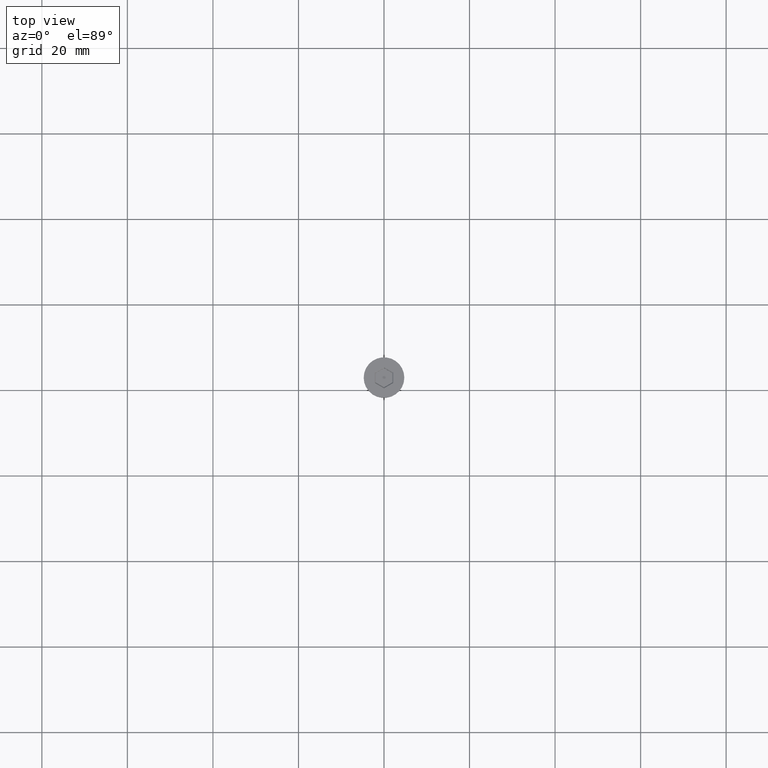
[diagram: clean part render]
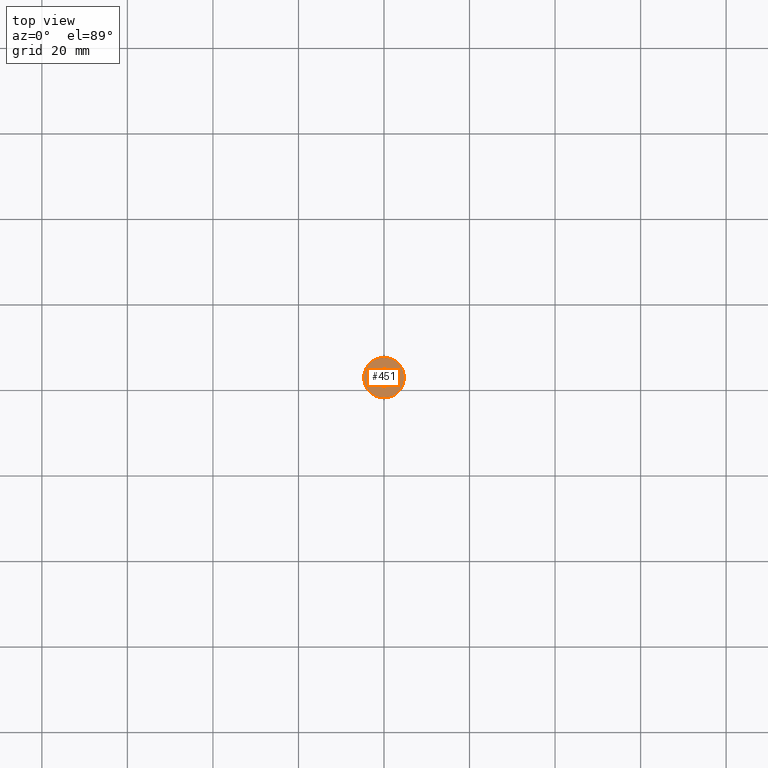
[diagram: same view with one face highlighted and labeled with its STEP entity id]
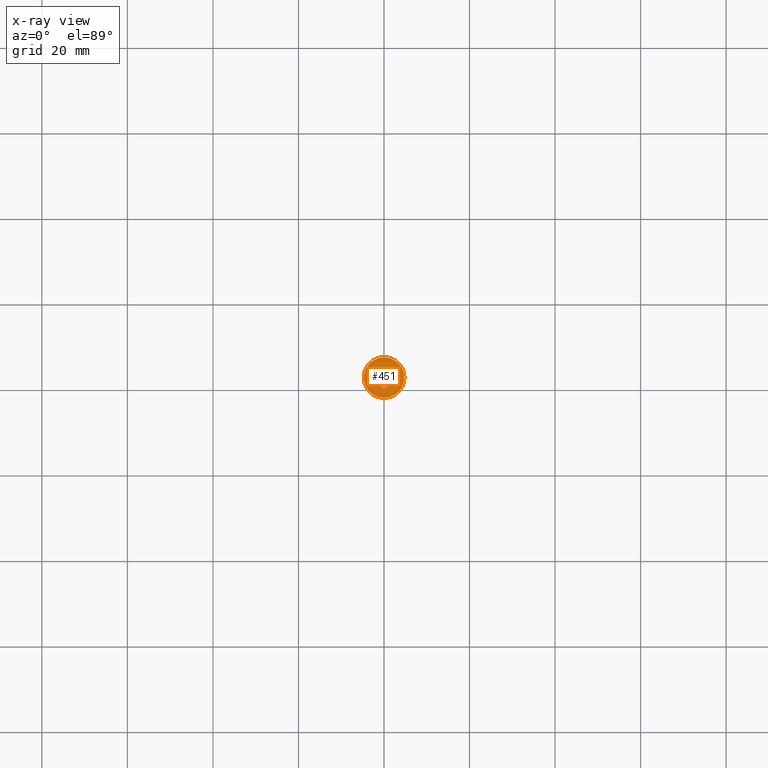
[diagram: x-ray of the same camera — body ghosted, the highlighted face saturated]
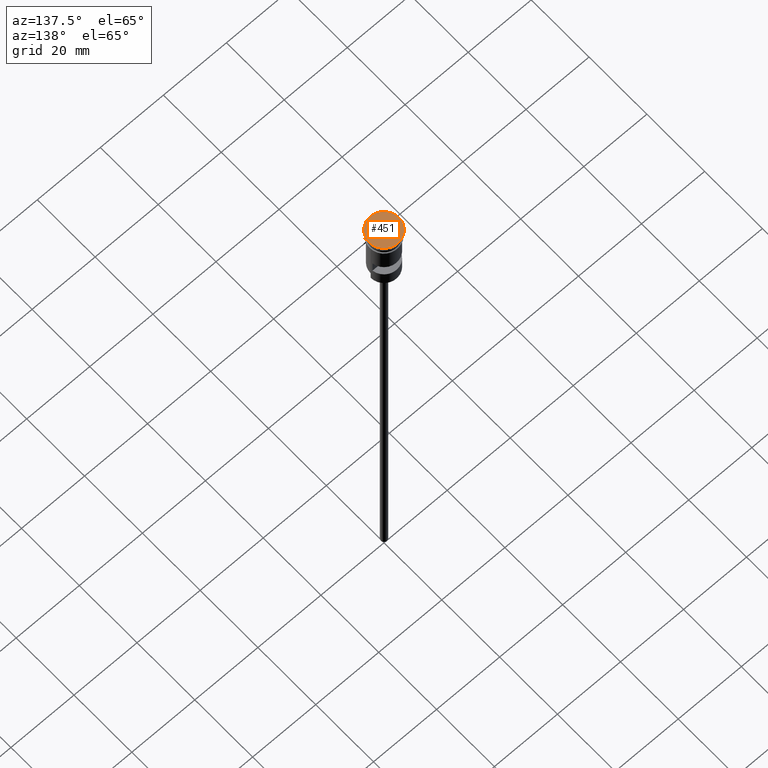
[diagram: same view with one face highlighted and labeled with its STEP entity id]
A machine part, top view. The second image highlights one B-rep face of the part: STEP entity #451.
The next image is the same camera in x-ray: the body ghosted, the highlighted face saturated — about 0% of this face is hidden behind the body in this view.
A second angle (auxiliary view) of the same face is appended — the face is thin or edge-on in the first view.
In plain terms, the highlighted planar face has unit normal (0, -0, 1).
Its self-contained STEP definition (entity closure, byte-faithful):
#25 = DIRECTION ( 'NONE',  ( 1.000000000000000000, 0.000000000000000000, 0.000000000000000000 ) ) ;
#41 = CARTESIAN_POINT ( 'NONE',  ( 2.049999999999996714, 1.299038105676652455, 0.000000000000000000 ) ) ;
#48 = CARTESIAN_POINT ( 'NONE',  ( 2.149999999999993250, 1.241303078757691969, 0.000000000000000000 ) ) ;
#69 = DIRECTION ( 'NONE',  ( -0.8660254037844387076, -0.4999999999999998335, 0.000000000000000000 ) ) ;
#82 = VERTEX_POINT ( 'NONE', #642 ) ;
#98 = CARTESIAN_POINT ( 'NONE',  ( -0.09999999999999692468, 2.424871130596422564, 0.000000000000000000 ) ) ;
#100 = DIRECTION ( 'NONE',  ( -1.926044357355332218E-16, -1.000000000000000000, 0.000000000000000000 ) ) ;
#104 = VERTEX_POINT ( 'NONE', #389 ) ;
#156 = LINE ( 'NONE', #41, #462 ) ;
#162 = DIRECTION ( 'NONE',  ( 1.000000000000000000, 0.000000000000000000, 0.000000000000000000 ) ) ;
#194 = DIRECTION ( 'NONE',  ( -0.000000000000000000, -0.000000000000000000, 1.000000000000000000 ) ) ;
#210 = ORIENTED_EDGE ( 'NONE', *, *, #1365, .T. ) ;
#216 = VECTOR ( 'NONE', #1186, 999.9999999999998863 ) ;
#297 = CARTESIAN_POINT ( 'NONE',  ( -2.149999999999994138, 1.241303078757690859, 0.000000000000000000 ) ) ;
#311 = DIRECTION ( 'NONE',  ( 1.000000000000000000, 0.000000000000000000, 0.000000000000000000 ) ) ;
#321 = CIRCLE ( 'NONE', #1233, 4.750000000000000000 ) ;
#370 = ORIENTED_EDGE ( 'NONE', *, *, #565, .T. ) ;
#389 = CARTESIAN_POINT ( 'NONE',  ( -6.517717499969021618E-16, -2.482606157515383050, 0.000000000000000000 ) ) ;
#404 = VECTOR ( 'NONE', #100, 1000.000000000000000 ) ;
#417 = CARTESIAN_POINT ( 'NONE',  ( 3.890099324841783067E-16, 2.482606157515383494, 0.000000000000000000 ) ) ;
#442 = LINE ( 'NONE', #922, #512 ) ;
#447 = CARTESIAN_POINT ( 'NONE',  ( -2.149999999999994582, -1.241303078757691303, 0.000000000000000000 ) ) ;
#451 = ADVANCED_FACE ( 'NONE', ( #1206, #1172 ), #1383, .T. ) ;
#462 = VECTOR ( 'NONE', #1043, 1000.000000000000114 ) ;
#498 = ORIENTED_EDGE ( 'NONE', *, *, #1188, .T. ) ;
#501 = CARTESIAN_POINT ( 'NONE',  ( -4.750000000000000000, 5.817072295949927426E-16, 0.000000000000000000 ) ) ;
#512 = VECTOR ( 'NONE', #1425, 1000.000000000000000 ) ;
#554 = CARTESIAN_POINT ( 'NONE',  ( 0.000000000000000000, 0.000000000000000000, 0.000000000000000000 ) ) ;
#565 = EDGE_CURVE ( 'NONE', #104, #1309, #1014, .T. ) ;
#568 = LINE ( 'NONE', #98, #216 ) ;
#584 = CARTESIAN_POINT ( 'NONE',  ( 0.09999999999999617528, -2.424871130596422564, 0.000000000000000000 ) ) ;
#610 = CIRCLE ( 'NONE', #639, 4.750000000000000000 ) ;
#639 = AXIS2_PLACEMENT_3D ( 'NONE', #660, #194, #311 ) ;
#641 = ORIENTED_EDGE ( 'NONE', *, *, #1398, .T. ) ;
#642 = CARTESIAN_POINT ( 'NONE',  ( 4.750000000000000000, 0.000000000000000000, 0.000000000000000000 ) ) ;
#660 = CARTESIAN_POINT ( 'NONE',  ( 0.000000000000000000, 0.000000000000000000, 0.000000000000000000 ) ) ;
#721 = VERTEX_POINT ( 'NONE', #297 ) ;
#756 = DIRECTION ( 'NONE',  ( -0.8660254037844385966, 0.5000000000000001110, 0.000000000000000000 ) ) ;
#784 = EDGE_CURVE ( 'NONE', #1137, #1349, #1452, .T. ) ;
#789 = ORIENTED_EDGE ( 'NONE', *, *, #1245, .T. ) ;
#873 = EDGE_LOOP ( 'NONE', ( #370, #498, #641, #1084, #1470, #210 ) ) ;
#922 = CARTESIAN_POINT ( 'NONE',  ( -2.149999999999994138, 1.125833024919770109, 0.000000000000000000 ) ) ;
#927 = CARTESIAN_POINT ( 'NONE',  ( 2.149999999999992806, -1.241303078757692413, 0.000000000000000000 ) ) ;
#996 = VECTOR ( 'NONE', #69, 1000.000000000000000 ) ;
#1014 = LINE ( 'NONE', #1369, #1513 ) ;
#1023 = CARTESIAN_POINT ( 'NONE',  ( 0.000000000000000000, 0.000000000000000000, 0.000000000000000000 ) ) ;
#1043 = DIRECTION ( 'NONE',  ( 0.8660254037844385966, -0.5000000000000001110, 0.000000000000000000 ) ) ;
#1084 = ORIENTED_EDGE ( 'NONE', *, *, #1126, .T. ) ;
#1119 = EDGE_CURVE ( 'NONE', #82, #1448, #321, .T. ) ;
#1126 = EDGE_CURVE ( 'NONE', #1559, #1137, #156, .T. ) ;
#1137 = VERTEX_POINT ( 'NONE', #48 ) ;
#1140 = DIRECTION ( 'NONE',  ( -0.000000000000000000, -0.000000000000000000, 1.000000000000000000 ) ) ;
#1172 = FACE_OUTER_BOUND ( 'NONE', #1525, .T. ) ;
#1174 = AXIS2_PLACEMENT_3D ( 'NONE', #1023, #1402, #162 ) ;
#1181 = CARTESIAN_POINT ( 'NONE',  ( 2.149999999999992806, -1.125833024919770331, 0.000000000000000000 ) ) ;
#1186 = DIRECTION ( 'NONE',  ( 0.8660254037844385966, 0.5000000000000002220, 0.000000000000000000 ) ) ;
#1188 = EDGE_CURVE ( 'NONE', #1309, #721, #442, .T. ) ;
#1206 = FACE_BOUND ( 'NONE', #873, .T. ) ;
#1233 = AXIS2_PLACEMENT_3D ( 'NONE', #554, #1140, #25 ) ;
#1245 = EDGE_CURVE ( 'NONE', #1448, #82, #610, .T. ) ;
#1293 = LINE ( 'NONE', #584, #996 ) ;
#1309 = VERTEX_POINT ( 'NONE', #447 ) ;
#1349 = VERTEX_POINT ( 'NONE', #927 ) ;
#1365 = EDGE_CURVE ( 'NONE', #1349, #104, #1293, .T. ) ;
#1369 = CARTESIAN_POINT ( 'NONE',  ( -2.049999999999997602, -1.299038105676652011, 0.000000000000000000 ) ) ;
#1383 = PLANE ( 'NONE',  #1174 ) ;
#1398 = EDGE_CURVE ( 'NONE', #721, #1559, #568, .T. ) ;
#1402 = DIRECTION ( 'NONE',  ( 0.000000000000000000, -0.000000000000000000, 1.000000000000000000 ) ) ;
#1425 = DIRECTION ( 'NONE',  ( 9.630221786776664787E-17, 1.000000000000000000, 0.000000000000000000 ) ) ;
#1448 = VERTEX_POINT ( 'NONE', #501 ) ;
#1452 = LINE ( 'NONE', #1181, #404 ) ;
#1470 = ORIENTED_EDGE ( 'NONE', *, *, #784, .T. ) ;
#1513 = VECTOR ( 'NONE', #756, 1000.000000000000114 ) ;
#1525 = EDGE_LOOP ( 'NONE', ( #1546, #789 ) ) ;
#1546 = ORIENTED_EDGE ( 'NONE', *, *, #1119, .T. ) ;
#1559 = VERTEX_POINT ( 'NONE', #417 ) ;